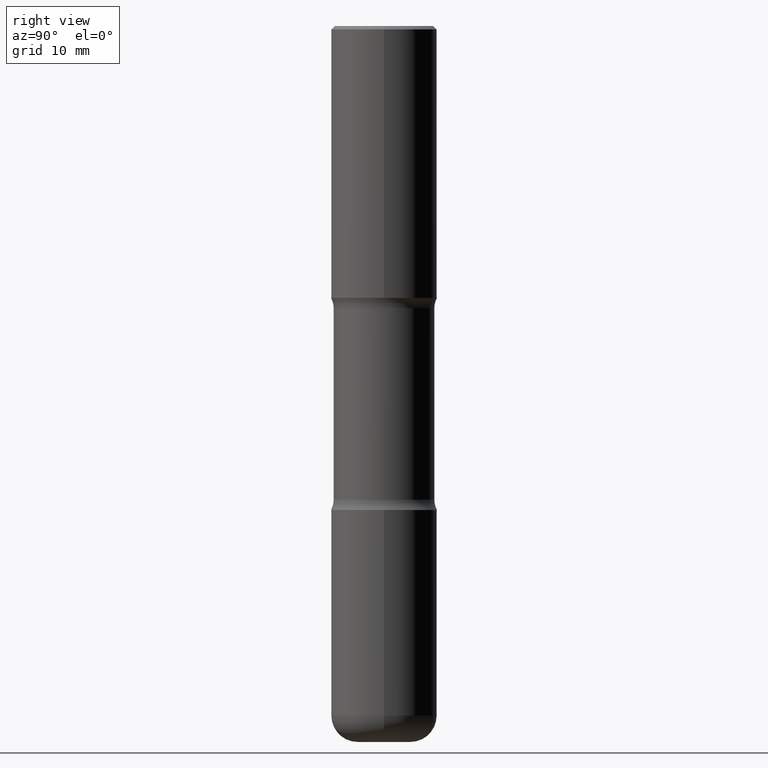
[diagram: clean part render]
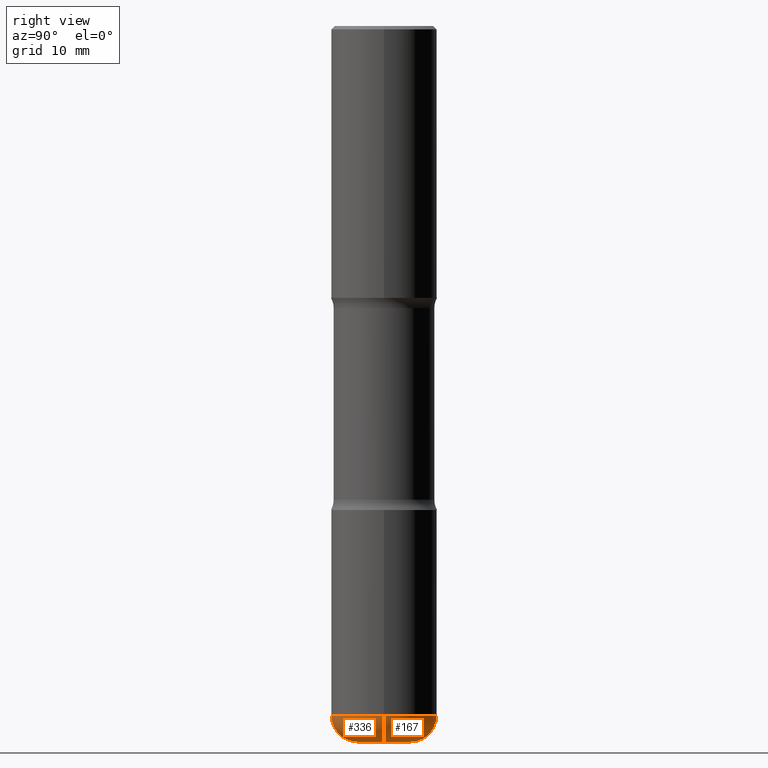
[diagram: same view with one multi-face feature highlighted, each face labeled with its STEP entity id]
A machine part, right view. The highlighted faces form ONE feature: a constant-radius fillet chain: 2 tangent blend faces with common blend radius 3.9878 mm. The faces share edges in the B-rep.
Their STEP definitions:
[1] entity #336 (Torus):
#20 = VERTEX_POINT ( 'NONE', #487 ) ;
#25 = AXIS2_PLACEMENT_3D ( 'NONE', #480, #398, #313 ) ;
#31 = ORIENTED_EDGE ( 'NONE', *, *, #404, .F. ) ;
#33 = AXIS2_PLACEMENT_3D ( 'NONE', #186, #181, #48 ) ;
#44 = EDGE_CURVE ( 'NONE', #231, #180, #550, .T. ) ;
#48 = DIRECTION ( 'NONE',  ( 1.000000000000000000, -6.982962677686268288E-15, 4.883557194083114022E-29 ) ) ;
#54 = DIRECTION ( 'NONE',  ( 1.000000000000000000, -6.982962677686268288E-15, 0.000000000000000000 ) ) ;
#83 = CIRCLE ( 'NONE', #483, 0.3149500000000003408 ) ;
#134 = DIRECTION ( 'NONE',  ( 1.000000000000000000, -6.982962677686269866E-15, 0.000000000000000000 ) ) ;
#136 = ORIENTED_EDGE ( 'NONE', *, *, #44, .T. ) ;
#174 = VERTEX_POINT ( 'NONE', #408 ) ;
#175 = CIRCLE ( 'NONE', #339, 0.1569999999999997231 ) ;
#180 = VERTEX_POINT ( 'NONE', #370 ) ;
#181 = DIRECTION ( 'NONE',  ( -2.445468806185136597E-29, 3.491481338843145583E-15, 1.000000000000000000 ) ) ;
#186 = CARTESIAN_POINT ( 'NONE',  ( 1.001419476132813495E-28, -1.429761608256268379E-14, -4.095000000000000639 ) ) ;
#196 = EDGE_LOOP ( 'NONE', ( #31, #136, #284, #521 ) ) ;
#212 = DIRECTION ( 'NONE',  ( -1.000000000000000000, 7.105427357601001859E-15, 0.000000000000000000 ) ) ;
#231 = VERTEX_POINT ( 'NONE', #556 ) ;
#273 = TOROIDAL_SURFACE ( 'NONE', #33, 0.1579500000000003679, 0.1569999999999997231 ) ;
#278 = DIRECTION ( 'NONE',  ( -2.445468806185136597E-29, 3.491481338843145583E-15, 1.000000000000000000 ) ) ;
#284 = ORIENTED_EDGE ( 'NONE', *, *, #476, .T. ) ;
#313 = DIRECTION ( 'NONE',  ( 1.000000000000000000, -6.982962677686265133E-15, 0.000000000000000000 ) ) ;
#336 = ADVANCED_FACE ( 'NONE', ( #383 ), #273, .T. ) ;
#339 = AXIS2_PLACEMENT_3D ( 'NONE', #558, #419, #212 ) ;
#352 = CIRCLE ( 'NONE', #25, 0.1569999999999997231 ) ;
#370 = CARTESIAN_POINT ( 'NONE',  ( 0.1579500000000003956, -1.594873760770160260E-14, -4.251999999999999780 ) ) ;
#383 = FACE_OUTER_BOUND ( 'NONE', #196, .T. ) ;
#391 = AXIS2_PLACEMENT_3D ( 'NONE', #524, #278, #134 ) ;
#398 = DIRECTION ( 'NONE',  ( -6.982962677686266711E-15, -1.000000000000000000, 3.491481338843145583E-15 ) ) ;
#404 = EDGE_CURVE ( 'NONE', #231, #174, #175, .T. ) ;
#408 = CARTESIAN_POINT ( 'NONE',  ( -0.3149500000000002298, -1.205976173628624465E-14, -4.095000000000000639 ) ) ;
#419 = DIRECTION ( 'NONE',  ( 7.105427357601001859E-15, 1.000000000000000000, -3.491481338843145583E-15 ) ) ;
#424 = EDGE_CURVE ( 'NONE', #174, #20, #83, .T. ) ;
#475 = DIRECTION ( 'NONE',  ( -2.445468806185136597E-29, 3.491481338843145583E-15, 1.000000000000000000 ) ) ;
#476 = EDGE_CURVE ( 'NONE', #180, #20, #352, .T. ) ;
#480 = CARTESIAN_POINT ( 'NONE',  ( 0.1579500000000003679, -1.540057503750323313E-14, -4.095000000000000639 ) ) ;
#483 = AXIS2_PLACEMENT_3D ( 'NONE', #516, #475, #54 ) ;
#487 = CARTESIAN_POINT ( 'NONE',  ( 0.3149500000000002298, -1.649690017789997523E-14, -4.095000000000000639 ) ) ;
#516 = CARTESIAN_POINT ( 'NONE',  ( 1.001419476132813495E-28, -1.429761608256268379E-14, -4.095000000000000639 ) ) ;
#521 = ORIENTED_EDGE ( 'NONE', *, *, #424, .F. ) ;
#524 = CARTESIAN_POINT ( 'NONE',  ( 1.039813336389919950E-28, -1.484577865276105326E-14, -4.251999999999999780 ) ) ;
#550 = CIRCLE ( 'NONE', #391, 0.1579500000000003956 ) ;
#556 = CARTESIAN_POINT ( 'NONE',  ( -0.1579500000000003956, -1.289161906895711129E-14, -4.251999999999999780 ) ) ;
#558 = CARTESIAN_POINT ( 'NONE',  ( -0.1579500000000003679, -1.317531383142960214E-14, -4.095000000000000639 ) ) ;
[2] entity #167 (Torus):
#5 = CIRCLE ( 'NONE', #237, 0.1579500000000003956 ) ;
#20 = VERTEX_POINT ( 'NONE', #487 ) ;
#21 = EDGE_CURVE ( 'NONE', #20, #174, #182, .T. ) ;
#25 = AXIS2_PLACEMENT_3D ( 'NONE', #480, #398, #313 ) ;
#100 = DIRECTION ( 'NONE',  ( -2.445468806185136597E-29, 3.491481338843145583E-15, 1.000000000000000000 ) ) ;
#111 = DIRECTION ( 'NONE',  ( 1.000000000000000000, -6.982962677686268288E-15, 4.883557194083114022E-29 ) ) ;
#120 = DIRECTION ( 'NONE',  ( 1.000000000000000000, -6.982962677686269866E-15, 0.000000000000000000 ) ) ;
#130 = ORIENTED_EDGE ( 'NONE', *, *, #203, .T. ) ;
#135 = ORIENTED_EDGE ( 'NONE', *, *, #476, .F. ) ;
#153 = CARTESIAN_POINT ( 'NONE',  ( 1.001419476132813495E-28, -1.429761608256268379E-14, -4.095000000000000639 ) ) ;
#167 = ADVANCED_FACE ( 'NONE', ( #187 ), #426, .T. ) ;
#174 = VERTEX_POINT ( 'NONE', #408 ) ;
#175 = CIRCLE ( 'NONE', #339, 0.1569999999999997231 ) ;
#180 = VERTEX_POINT ( 'NONE', #370 ) ;
#182 = CIRCLE ( 'NONE', #494, 0.3149500000000003408 ) ;
#187 = FACE_OUTER_BOUND ( 'NONE', #288, .T. ) ;
#199 = ORIENTED_EDGE ( 'NONE', *, *, #21, .F. ) ;
#201 = AXIS2_PLACEMENT_3D ( 'NONE', #153, #497, #111 ) ;
#203 = EDGE_CURVE ( 'NONE', #180, #231, #5, .T. ) ;
#212 = DIRECTION ( 'NONE',  ( -1.000000000000000000, 7.105427357601001859E-15, 0.000000000000000000 ) ) ;
#231 = VERTEX_POINT ( 'NONE', #556 ) ;
#237 = AXIS2_PLACEMENT_3D ( 'NONE', #490, #281, #120 ) ;
#281 = DIRECTION ( 'NONE',  ( -2.445468806185136597E-29, 3.491481338843145583E-15, 1.000000000000000000 ) ) ;
#288 = EDGE_LOOP ( 'NONE', ( #130, #393, #199, #135 ) ) ;
#313 = DIRECTION ( 'NONE',  ( 1.000000000000000000, -6.982962677686265133E-15, 0.000000000000000000 ) ) ;
#339 = AXIS2_PLACEMENT_3D ( 'NONE', #558, #419, #212 ) ;
#352 = CIRCLE ( 'NONE', #25, 0.1569999999999997231 ) ;
#361 = CARTESIAN_POINT ( 'NONE',  ( 1.001419476132813495E-28, -1.429761608256268379E-14, -4.095000000000000639 ) ) ;
#370 = CARTESIAN_POINT ( 'NONE',  ( 0.1579500000000003956, -1.594873760770160260E-14, -4.251999999999999780 ) ) ;
#393 = ORIENTED_EDGE ( 'NONE', *, *, #404, .T. ) ;
#398 = DIRECTION ( 'NONE',  ( -6.982962677686266711E-15, -1.000000000000000000, 3.491481338843145583E-15 ) ) ;
#404 = EDGE_CURVE ( 'NONE', #231, #174, #175, .T. ) ;
#408 = CARTESIAN_POINT ( 'NONE',  ( -0.3149500000000002298, -1.205976173628624465E-14, -4.095000000000000639 ) ) ;
#419 = DIRECTION ( 'NONE',  ( 7.105427357601001859E-15, 1.000000000000000000, -3.491481338843145583E-15 ) ) ;
#426 = TOROIDAL_SURFACE ( 'NONE', #201, 0.1579500000000003679, 0.1569999999999997231 ) ;
#476 = EDGE_CURVE ( 'NONE', #180, #20, #352, .T. ) ;
#480 = CARTESIAN_POINT ( 'NONE',  ( 0.1579500000000003679, -1.540057503750323313E-14, -4.095000000000000639 ) ) ;
#487 = CARTESIAN_POINT ( 'NONE',  ( 0.3149500000000002298, -1.649690017789997523E-14, -4.095000000000000639 ) ) ;
#490 = CARTESIAN_POINT ( 'NONE',  ( 1.039813336389919950E-28, -1.484577865276105326E-14, -4.251999999999999780 ) ) ;
#494 = AXIS2_PLACEMENT_3D ( 'NONE', #361, #100, #522 ) ;
#497 = DIRECTION ( 'NONE',  ( -2.445468806185136597E-29, 3.491481338843145583E-15, 1.000000000000000000 ) ) ;
#522 = DIRECTION ( 'NONE',  ( 1.000000000000000000, -6.982962677686268288E-15, 0.000000000000000000 ) ) ;
#556 = CARTESIAN_POINT ( 'NONE',  ( -0.1579500000000003956, -1.289161906895711129E-14, -4.251999999999999780 ) ) ;
#558 = CARTESIAN_POINT ( 'NONE',  ( -0.1579500000000003679, -1.317531383142960214E-14, -4.095000000000000639 ) ) ;